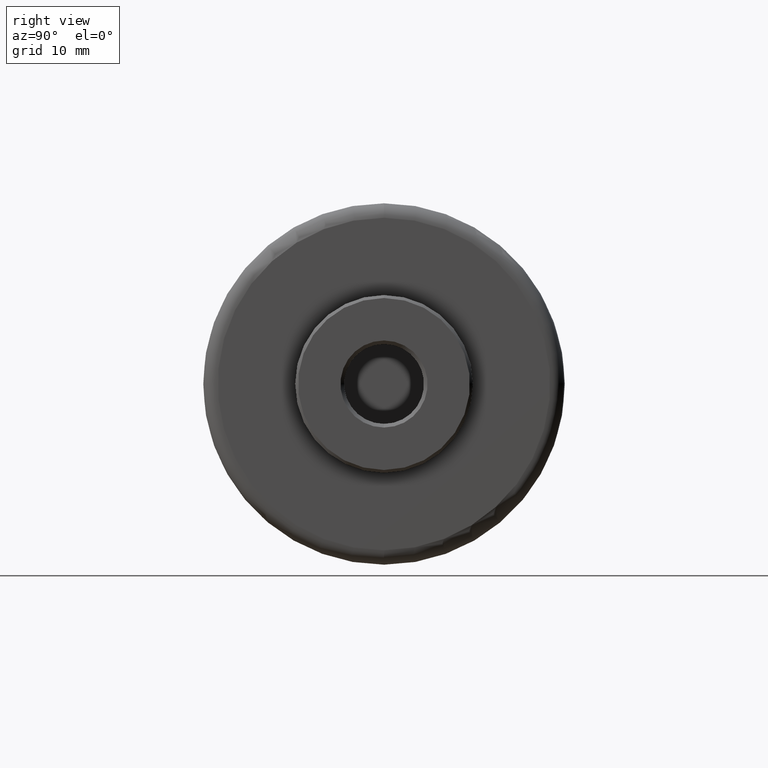
[diagram: clean part render]
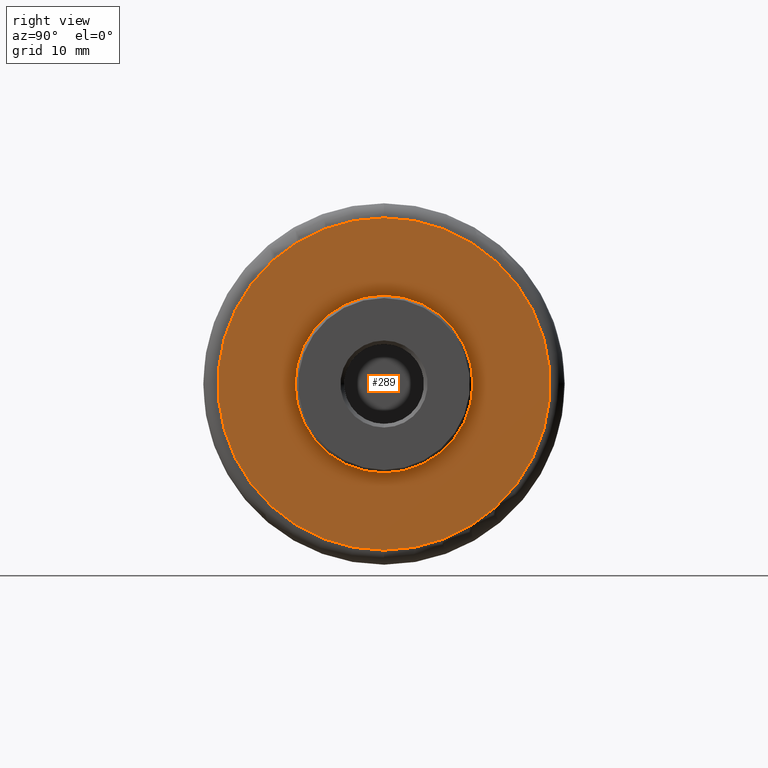
[diagram: same view with one face highlighted and labeled with its STEP entity id]
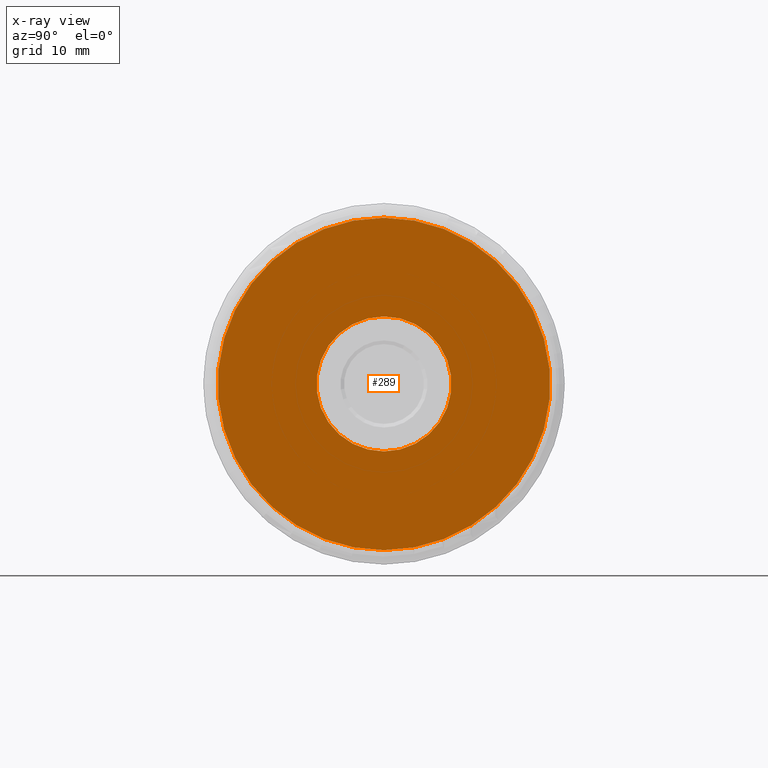
[diagram: x-ray of the same camera — body ghosted, the highlighted face saturated]
A machine part, right view. The second image highlights one B-rep face of the part: STEP entity #289.
The next image is the same camera in x-ray: the body ghosted, the highlighted face saturated — about 0% of this face is hidden behind the body in this view.
In plain terms, the highlighted planar face has unit normal (1, -0, 0).
Its self-contained STEP definition (entity closure, byte-faithful):
#42 = FACE_BOUND ( 'NONE', #1136, .T. ) ;
#47 = DIRECTION ( 'NONE',  ( 1.000000000000000000, -0.0000000000000000000, 0.0000000000000000000 ) ) ;
#109 = VERTEX_POINT ( 'NONE', #1307 ) ;
#146 = CARTESIAN_POINT ( 'NONE',  ( 66.59999999999999400, 0.0000000000000000000, 0.0000000000000000000 ) ) ;
#152 = CARTESIAN_POINT ( 'NONE',  ( 66.59999999999999400, 1.138921523207038600E-015, -9.300000000000000700 ) ) ;
#182 = CIRCLE ( 'NONE', #1383, 9.300000000000000700 ) ;
#184 = AXIS2_PLACEMENT_3D ( 'NONE', #983, #318, #1085 ) ;
#233 = CARTESIAN_POINT ( 'NONE',  ( 66.59999999999999400, 0.0000000000000000000, 0.0000000000000000000 ) ) ;
#251 = EDGE_CURVE ( 'NONE', #109, #300, #934, .T. ) ;
#267 = DIRECTION ( 'NONE',  ( 0.0000000000000000000, 0.0000000000000000000, 1.000000000000000000 ) ) ;
#289 = ADVANCED_FACE ( 'NONE', ( #643, #42 ), #718, .T. ) ;
#294 = ORIENTED_EDGE ( 'NONE', *, *, #1176, .T. ) ;
#298 = VERTEX_POINT ( 'NONE', #152 ) ;
#300 = VERTEX_POINT ( 'NONE', #944 ) ;
#311 = ORIENTED_EDGE ( 'NONE', *, *, #608, .T. ) ;
#318 = DIRECTION ( 'NONE',  ( 1.000000000000000000, -0.0000000000000000000, 0.0000000000000000000 ) ) ;
#362 = DIRECTION ( 'NONE',  ( 0.0000000000000000000, 0.0000000000000000000, 1.000000000000000000 ) ) ;
#378 = CARTESIAN_POINT ( 'NONE',  ( 66.59999999999999400, 0.0000000000000000000, 9.300000000000000700 ) ) ;
#381 = DIRECTION ( 'NONE',  ( 1.000000000000000000, -0.0000000000000000000, 0.0000000000000000000 ) ) ;
#577 = ORIENTED_EDGE ( 'NONE', *, *, #251, .T. ) ;
#608 = EDGE_CURVE ( 'NONE', #298, #1319, #1436, .T. ) ;
#643 = FACE_OUTER_BOUND ( 'NONE', #1125, .T. ) ;
#718 = PLANE ( 'NONE',  #1246 ) ;
#734 = ORIENTED_EDGE ( 'NONE', *, *, #943, .T. ) ;
#826 = DIRECTION ( 'NONE',  ( 0.0000000000000000000, 0.0000000000000000000, -1.000000000000000000 ) ) ;
#934 = CIRCLE ( 'NONE', #1128, 22.89999999999999500 ) ;
#935 = DIRECTION ( 'NONE',  ( -1.000000000000000000, -0.0000000000000000000, -0.0000000000000000000 ) ) ;
#943 = EDGE_CURVE ( 'NONE', #300, #109, #1252, .T. ) ;
#944 = CARTESIAN_POINT ( 'NONE',  ( 66.59999999999999400, 2.926905849962173700E-015, 22.89999999999999500 ) ) ;
#983 = CARTESIAN_POINT ( 'NONE',  ( 66.59999999999999400, 0.0000000000000000000, 0.0000000000000000000 ) ) ;
#1017 = DIRECTION ( 'NONE',  ( -1.000000000000000000, -0.0000000000000000000, -0.0000000000000000000 ) ) ;
#1042 = CARTESIAN_POINT ( 'NONE',  ( 66.59999999999999400, 0.0000000000000000000, 0.0000000000000000000 ) ) ;
#1085 = DIRECTION ( 'NONE',  ( 0.0000000000000000000, 0.0000000000000000000, -1.000000000000000000 ) ) ;
#1125 = EDGE_LOOP ( 'NONE', ( #577, #734 ) ) ;
#1128 = AXIS2_PLACEMENT_3D ( 'NONE', #1042, #381, #1147 ) ;
#1136 = EDGE_LOOP ( 'NONE', ( #294, #311 ) ) ;
#1147 = DIRECTION ( 'NONE',  ( 0.0000000000000000000, 0.0000000000000000000, -1.000000000000000000 ) ) ;
#1176 = EDGE_CURVE ( 'NONE', #1319, #298, #182, .T. ) ;
#1218 = AXIS2_PLACEMENT_3D ( 'NONE', #146, #935, #267 ) ;
#1246 = AXIS2_PLACEMENT_3D ( 'NONE', #1275, #47, #826 ) ;
#1252 = CIRCLE ( 'NONE', #184, 22.89999999999999500 ) ;
#1275 = CARTESIAN_POINT ( 'NONE',  ( 66.59999999999999400, -23.57959999999999900, 23.57959999999999900 ) ) ;
#1307 = CARTESIAN_POINT ( 'NONE',  ( 66.59999999999999400, 0.0000000000000000000, -22.89999999999999500 ) ) ;
#1319 = VERTEX_POINT ( 'NONE', #378 ) ;
#1383 = AXIS2_PLACEMENT_3D ( 'NONE', #233, #1017, #362 ) ;
#1436 = CIRCLE ( 'NONE', #1218, 9.300000000000000700 ) ;